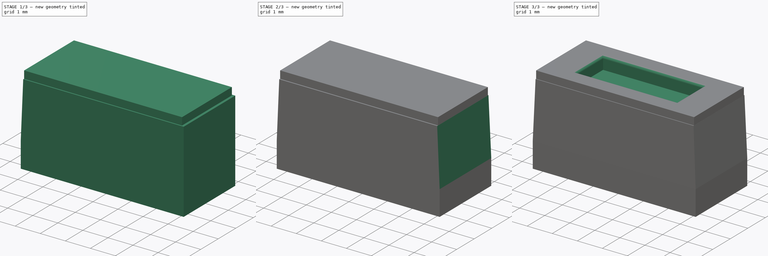
[diagram: build sequence overview — one tinted view per stage of 3, left to right]
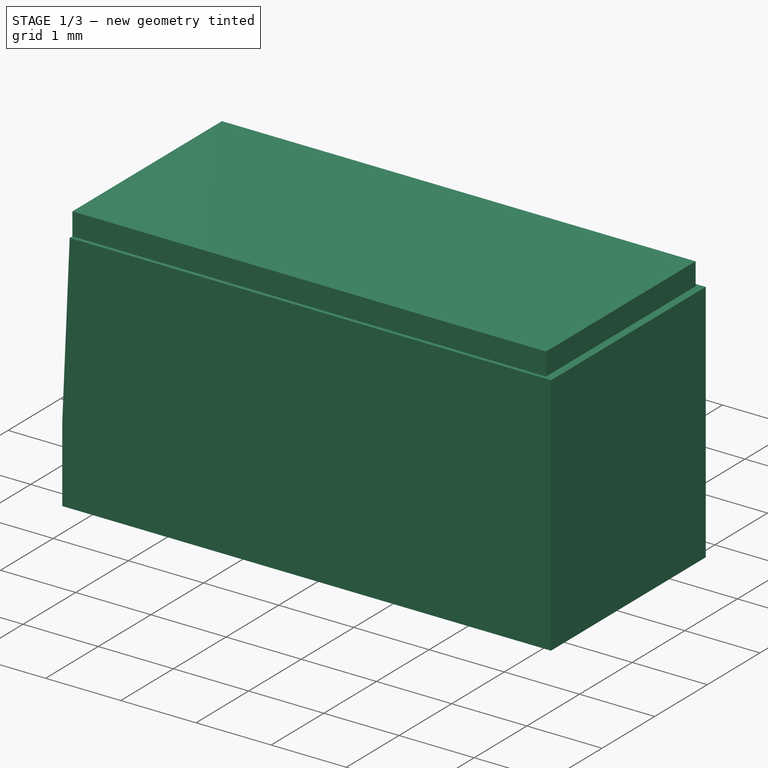
[diagram: stage 1 of 3 — iso view after this stage's code; geometry added in this stage tinted green]
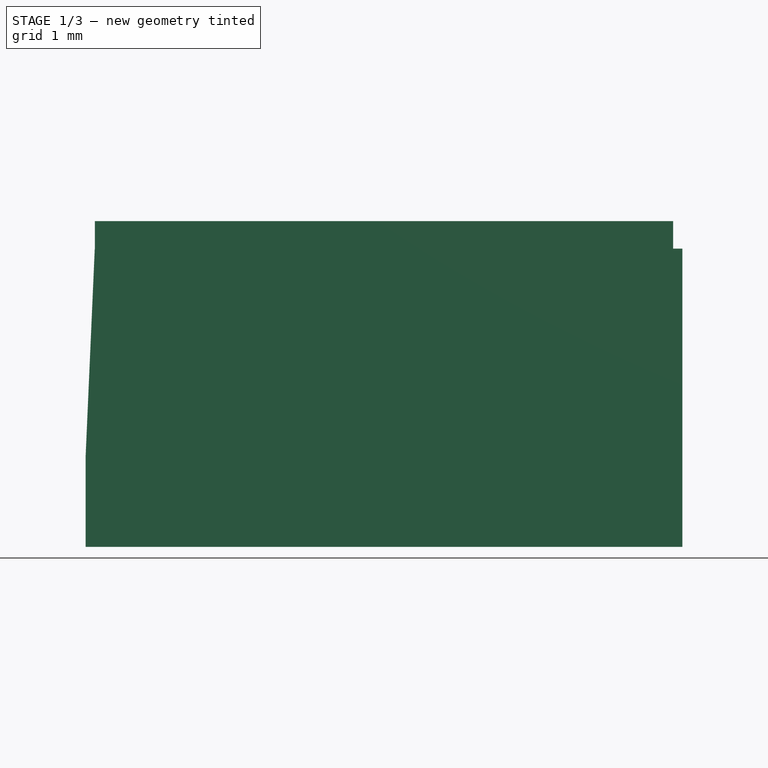
[diagram: stage 1 of 3 — front view after this stage's code; geometry added in this stage tinted green]
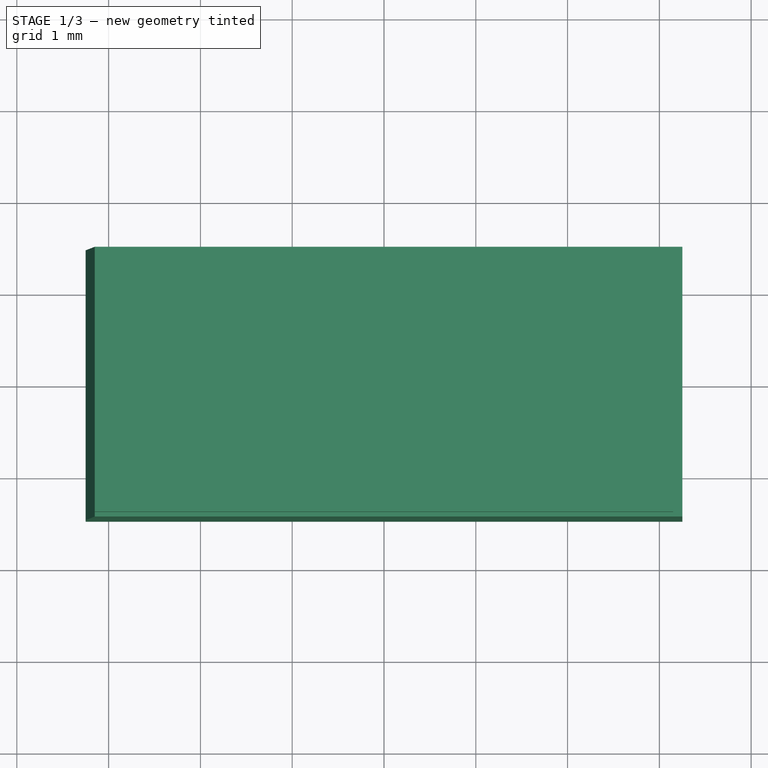
[diagram: stage 1 of 3 — top view after this stage's code; geometry added in this stage tinted green]
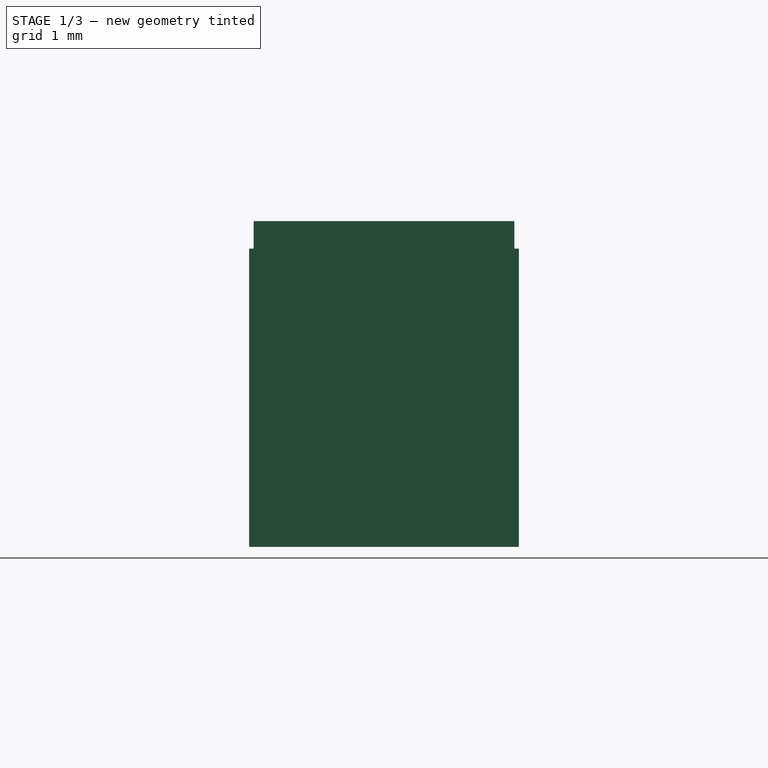
[diagram: stage 1 of 3 — right view after this stage's code; geometry added in this stage tinted green]
FCSTD DOCUMENT  (FreeCAD 0.19R24276 (Git))
Label: DIP_0x01_SMD_C54948
License: All rights reserved
LicenseURL: http://en.wikipedia.org/wiki/All_rights_reserved
objects: Sketcher::SketchObject×4, PartDesign::Chamfer×4, PartDesign::Pocket×2, PartDesign::Body×2, PartDesign::Pad×1, PartDesign::Fillet×1, App::Part×1
note: 22 computed .brp shape members not serialized (recipe doc carries the construction recipe); baked Part::Feature solids carry a one-line shape summary decoded from their .brp

FEATURE [Sketcher::SketchObject] Sketch
  FullyConstrained = true
  MapMode = 5
  Support = -> [XY_Plane001]
  sketch-geometry (4):
    g0: LineSegment StartX=-3.25 StartY=-1.47 StartZ=0 EndX=3.25 EndY=-1.47 EndZ=0
    g1: LineSegment StartX=3.25 StartY=-1.47 StartZ=0 EndX=3.25 EndY=1.47 EndZ=0
    g2: LineSegment StartX=3.25 StartY=1.47 StartZ=0 EndX=-3.25 EndY=1.47 EndZ=0
    g3: LineSegment StartX=-3.25 StartY=1.47 StartZ=0 EndX=-3.25 EndY=-1.47 EndZ=0
  constraints (11):
    c: Coincident(g0,g1)
    c: Coincident(g1,g2)
    c: Coincident(g2,g3)
    c: Coincident(g3,g0)
    c: Horizontal(g0)
    c: Horizontal(g2)
    c: Vertical(g1)
    c: Vertical(g3)
    c: Symmetric(g0,g1,g-1)
    c: DistanceY(g1,g1) = 2.94
    c: DistanceX(g2,g2) = 6.5
FEATURE [PartDesign::Pad] Pad
  Direction = (1,1,1)
  Length = 3.55
  Length2 = 100
  Profile = -> Sketch
  Type = 0
FEATURE [Sketcher::SketchObject] Sketch001
  ExternalGeometry = -> [Pad]
  FullyConstrained = false
  MapMode = 5
  Placement = pos=(0,0,3.55) rot=(0,0,1;0rad)
  Support = -> [Pad]
  sketch-geometry (8):
    g0: LineSegment StartX=-3.25 StartY=-1.47 StartZ=0 EndX=3.25 EndY=-1.47 EndZ=0
    g1: LineSegment StartX=3.25 StartY=-1.47 StartZ=0 EndX=3.25 EndY=1.47 EndZ=0
    g2: LineSegment StartX=3.25 StartY=1.47 StartZ=0 EndX=-3.25 EndY=1.47 EndZ=0
    g3: LineSegment StartX=-3.25 StartY=1.47 StartZ=0 EndX=-3.25 EndY=-1.47 EndZ=0
    g4: LineSegment StartX=-3.15 StartY=-1.42 StartZ=0 EndX=3.15 EndY=-1.42 EndZ=0
    g5: LineSegment StartX=3.15 StartY=-1.42 StartZ=0 EndX=3.15 EndY=1.42 EndZ=0
    g6: LineSegment StartX=3.15 StartY=1.42 StartZ=0 EndX=-3.15 EndY=1.42 EndZ=0
    g7: LineSegment StartX=-3.15 StartY=1.42 StartZ=0 EndX=-3.15 EndY=-1.42 EndZ=0
  constraints (19):
    c: Coincident(g0,g1)
    c: Coincident(g1,g2)
    c: Coincident(g2,g3)
    c: Coincident(g3,g0)
    c: Horizontal(g0)
    c: Horizontal(g2)
    c: Vertical(g1)
    c: Vertical(g3)
    c: Coincident(g4,g5)
    c: Coincident(g5,g6)
    c: Coincident(g6,g7)
    c: Coincident(g7,g4)
    c: Horizontal(g4)
    c: Horizontal(g6)
    c: Vertical(g5)
    c: Vertical(g7)
    c: Symmetric(g5,g4,g-1)
    c: DistanceX(g6,g6) = 6.3
    c: DistanceY(g5,g5) = 2.84
FEATURE [PartDesign::Pocket] Pocket
  BaseFeature = -> Pad
  Length = 0.3
  Length2 = 100
  Profile = -> Sketch001
  Type = 0
FEATURE [PartDesign::Chamfer] Chamfer
  Angle = 45
  Base = -> Pocket [Edge11]
  BaseFeature = -> Pocket
  ChamferType = 1
  FlipDirection = false
  Size = 0.099
  Size2 = 2.25
  SupportTransform = false
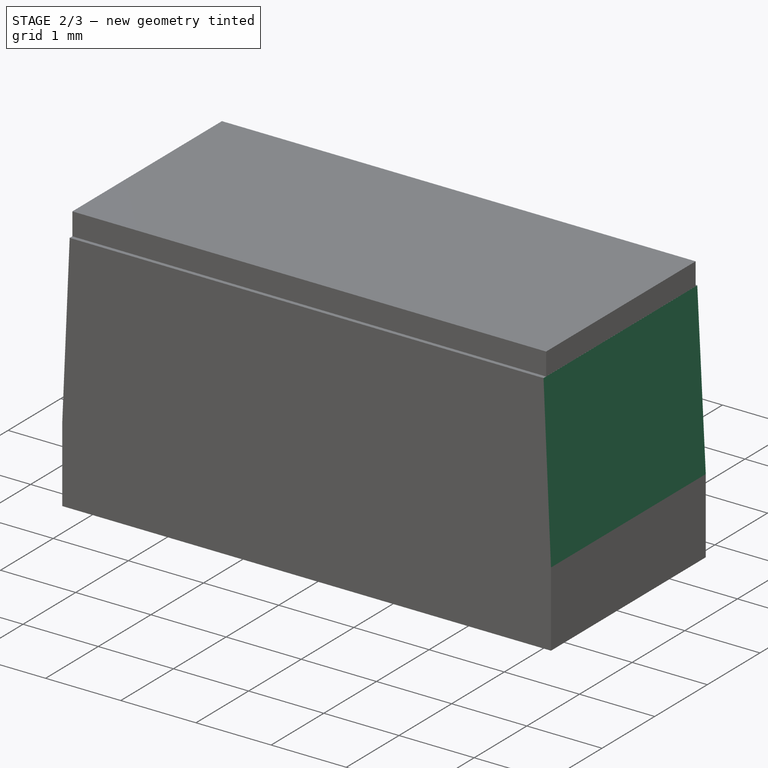
[diagram: stage 2 of 3 — iso view after this stage's code; geometry added in this stage tinted green]
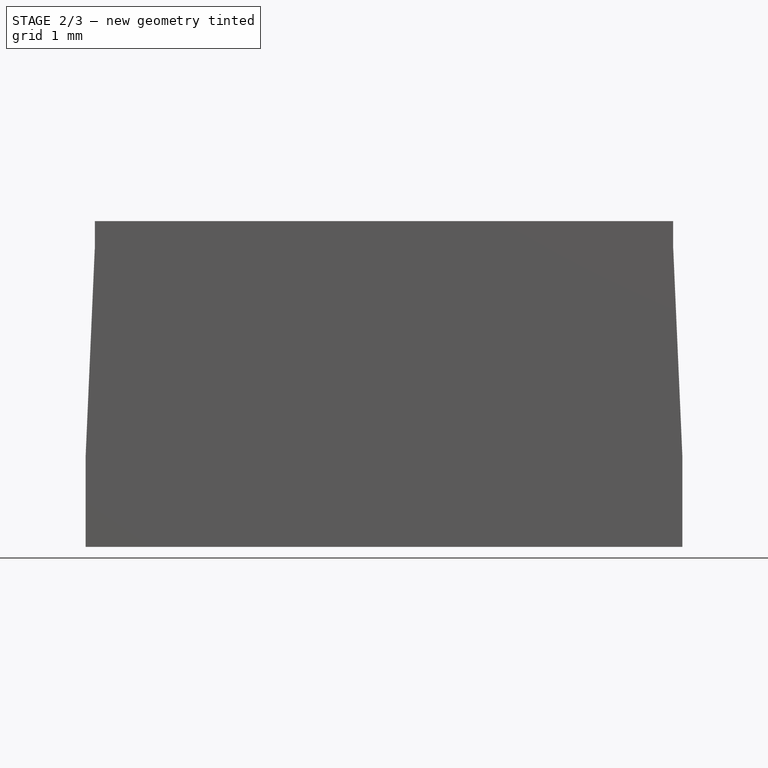
[diagram: stage 2 of 3 — front view after this stage's code; geometry added in this stage tinted green]
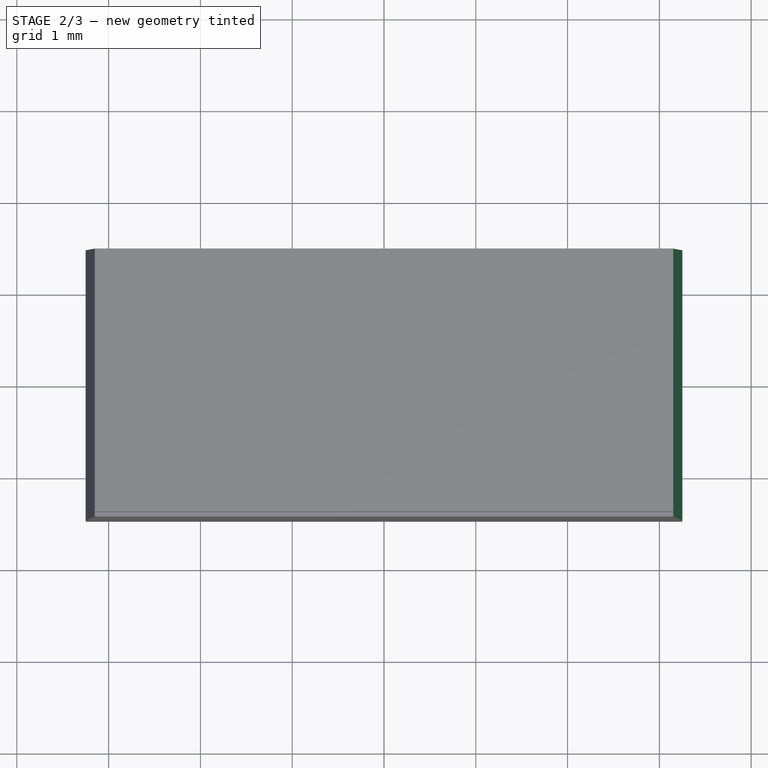
[diagram: stage 2 of 3 — top view after this stage's code; geometry added in this stage tinted green]
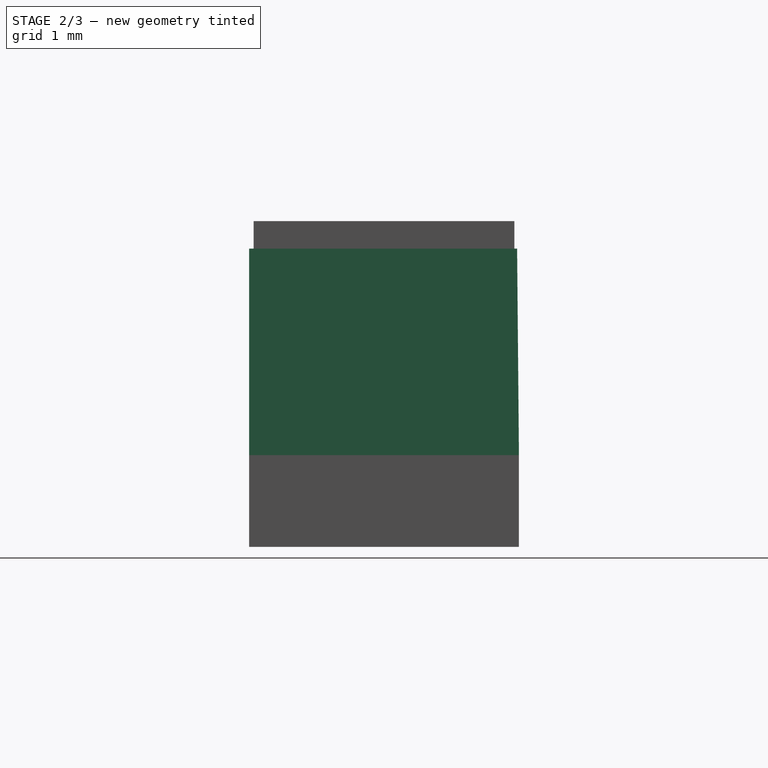
[diagram: stage 2 of 3 — right view after this stage's code; geometry added in this stage tinted green]
FEATURE [PartDesign::Chamfer] Chamfer001
  Angle = 45
  Base = -> Chamfer [Edge7]
  BaseFeature = -> Chamfer
  ChamferType = 1
  FlipDirection = false
  Size = 0.099
  Size2 = 2.25
  SupportTransform = false
FEATURE [PartDesign::Chamfer] Chamfer002
  Angle = 45
  Base = -> Chamfer001 [Edge9]
  BaseFeature = -> Chamfer001
  ChamferType = 1
  FlipDirection = false
  Size = 0.02
  Size2 = 2.25
  SupportTransform = false
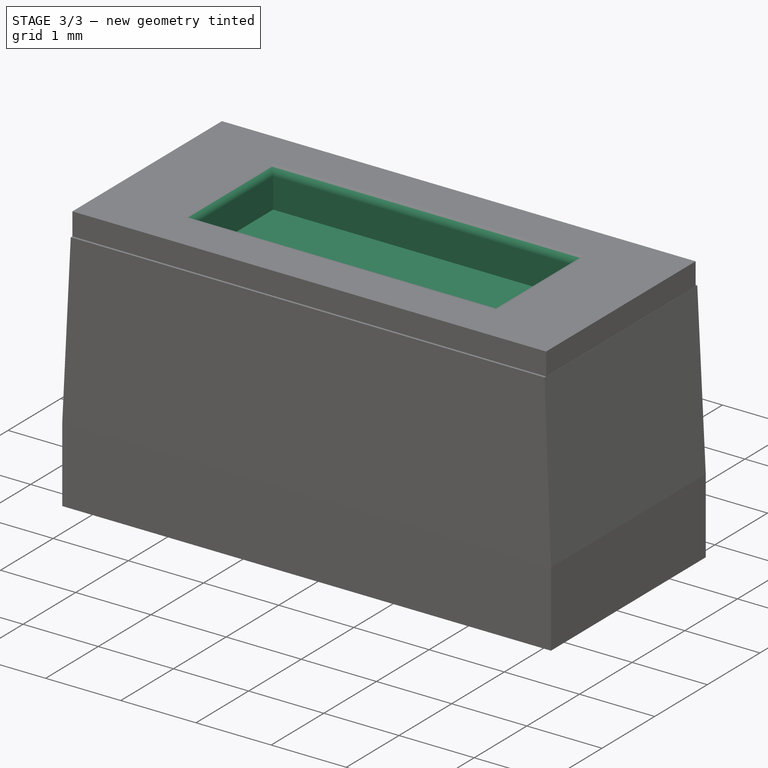
[diagram: stage 3 of 3 — iso view after this stage's code; geometry added in this stage tinted green]
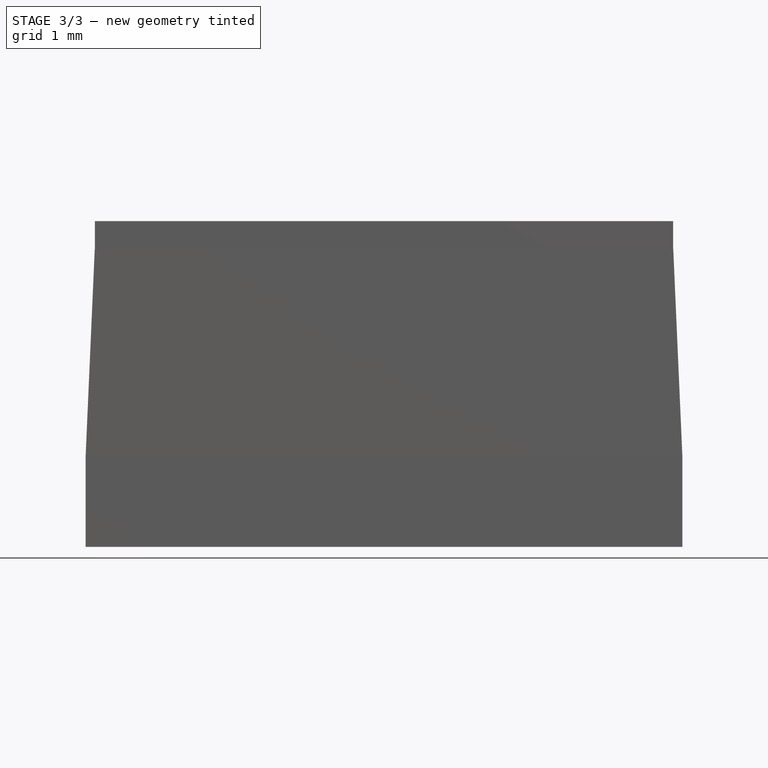
[diagram: stage 3 of 3 — front view after this stage's code; geometry added in this stage tinted green]
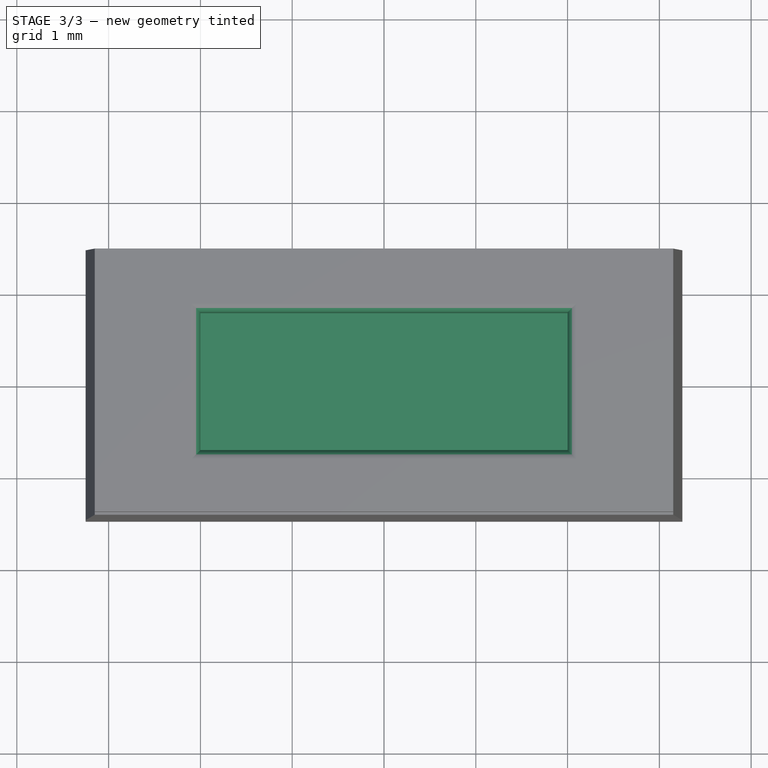
[diagram: stage 3 of 3 — top view after this stage's code; geometry added in this stage tinted green]
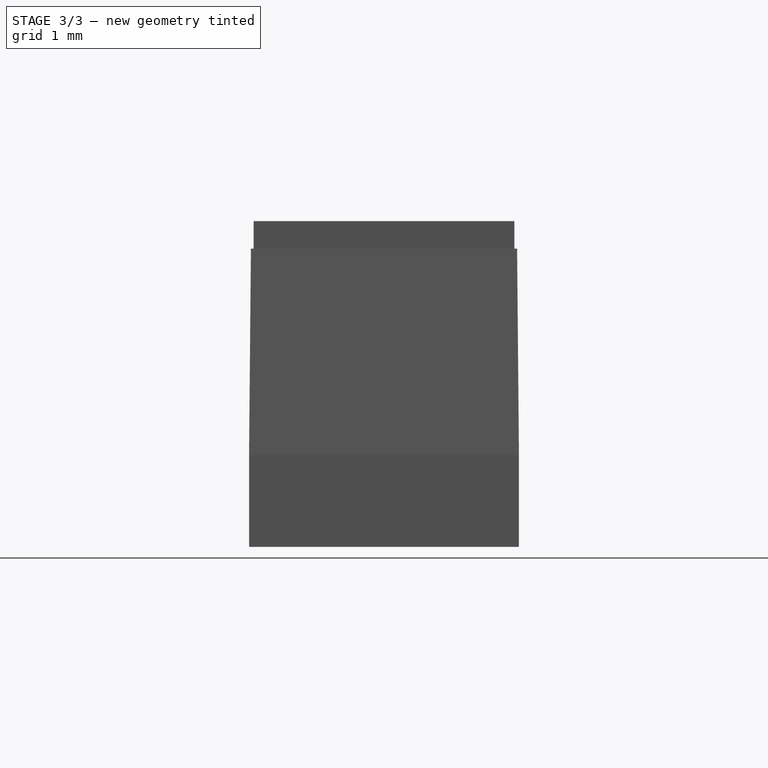
[diagram: stage 3 of 3 — right view after this stage's code; geometry added in this stage tinted green]
FEATURE [PartDesign::Chamfer] Chamfer003
  Angle = 45
  Base = -> Chamfer002 [Edge3]
  BaseFeature = -> Chamfer002
  ChamferType = 1
  FlipDirection = false
  Size = 0.02
  Size2 = 2.25
  SupportTransform = false
FEATURE [Sketcher::SketchObject] Sketch002
  FullyConstrained = true
  MapMode = 5
  Placement = pos=(0,0,3.55) rot=(0,0,1;0rad)
  Support = -> [Chamfer003]
  sketch-geometry (4):
    g0: LineSegment StartX=-2 StartY=-0.75 StartZ=0 EndX=2 EndY=-0.75 EndZ=0
    g1: LineSegment StartX=2 StartY=-0.75 StartZ=0 EndX=2 EndY=0.75 EndZ=0
    g2: LineSegment StartX=2 StartY=0.75 StartZ=0 EndX=-2 EndY=0.75 EndZ=0
    g3: LineSegment StartX=-2 StartY=0.75 StartZ=0 EndX=-2 EndY=-0.75 EndZ=0
  constraints (11):
    c: Coincident(g0,g1)
    c: Coincident(g1,g2)
    c: Coincident(g2,g3)
    c: Coincident(g3,g0)
    c: Horizontal(g0)
    c: Horizontal(g2)
    c: Vertical(g1)
    c: Vertical(g3)
    c: Symmetric(g1,g0,g-1)
    c: DistanceY(g1,g1) = 1.5
    c: DistanceX(g2,g2) = 4
FEATURE [PartDesign::Pocket] Pocket001
  BaseFeature = -> Chamfer003
  Length = 0.5
  Length2 = 100
  Profile = -> Sketch002
  Type = 0
FEATURE [PartDesign::Fillet] Fillet
  Base = -> Pocket001 [Edge34,Edge33,Edge35,Edge36]
  BaseFeature = -> Pocket001
  Radius = 0.1
  SupportTransform = false
FEATURE [PartDesign::Body] Body  label="SwitchBody"
  Group = -> [Sketch,Pad,Sketch001,Pocket,Chamfer,Chamfer001,Chamfer002,Chamfer003,Sketch002,Pocket001,Fillet]
  Origin = -> Origin001
  Placement = pos=(0,0,0.4) rot=(0,0,1;0rad)
  Tip = -> Fillet
FEATURE [Sketcher::SketchObject] Sketch003
  FullyConstrained = false
  MapMode = 5
  Placement = pos=(0,0,0) rot=(1,0,0;1.5708rad)
  Support = -> [XZ_Plane002]
  sketch-geometry (10):
    g0: LineSegment StartX=-4.9 StartY=0 StartZ=0 EndX=4.9 EndY=0 EndZ=0
    g1: LineSegment StartX=-4.1 StartY=0 StartZ=0 EndX=-4.1 EndY=1.8 EndZ=0
    g2: LineSegment StartX=4.1 StartY=0 StartZ=0 EndX=4.1 EndY=1.8 EndZ=0
    g3: LineSegment StartX=-4.1 StartY=1.55 StartZ=0 EndX=4.1 EndY=1.55 EndZ=0
    g4: LineSegment StartX=-4.9 StartY=0 StartZ=0 EndX=4.796 EndY=0 EndZ=0
    g5: LineSegment StartX=-4.9 StartY=0 StartZ=0 EndX=-4.9 EndY=0.25 EndZ=0
    g6: LineSegment StartX=4.9 StartY=0 StartZ=0 EndX=4.9 EndY=0.25 EndZ=0
    g7: LineSegment StartX=-4.9 StartY=0.25 StartZ=0 EndX=4.9 EndY=0.25 EndZ=0
    g8: LineSegment StartX=4.1 StartY=1.8 StartZ=0 EndX=4.35 EndY=0.25 EndZ=0
    g9: LineSegment StartX=-4 StartY=2 StartZ=0 EndX=-4.44821 EndY=0.249888 EndZ=0
  constraints (28):
    c: Symmetric(g0,g0,g-1)
    c: DistanceX(g0,g0) = 9.8
    c: Vertical(g1)
    c: Vertical(g2)
    c: DistanceX(g0,g1) = 0.8
    c: DistanceX(g2,g0) = 0.8
    c: Horizontal(g0)
    c: PointOnObject(g1,g0)
    c: PointOnObject(g2,g0)
    c: DistanceY(g1,g1) = 1.8
    c: Equal(g2,g1)
    c: PointOnObject(g3,g1)
    c: PointOnObject(g3,g2)
    c: Horizontal(g3)
    c: DistanceY(g3,g1) = 0.25
    c: Horizontal(g4)
    c: Coincident(g4,g0)
    c: Vertical(g5)
    c: DistanceY(g5,g5) = 0.25
    c: Coincident(g5,g0)
    c: DistanceY(g6,g6) = 0.25
    c: Vertical(g6)
    c: Coincident(g6,g0)
    c: Coincident(g7,g6)
    c: Coincident(g7,g5)
    c: PointOnObject(g8,g7)
    c: Coincident(g8,g2)
    c: DistanceX(g2,g8) = 0.25
FEATURE [PartDesign::Body] Body001  label="Legs"
  Group = -> [Sketch003]
  Origin = -> Origin002
FEATURE [App::Part] Part
  Group = -> [Body001,Body]
  Origin = -> Origin
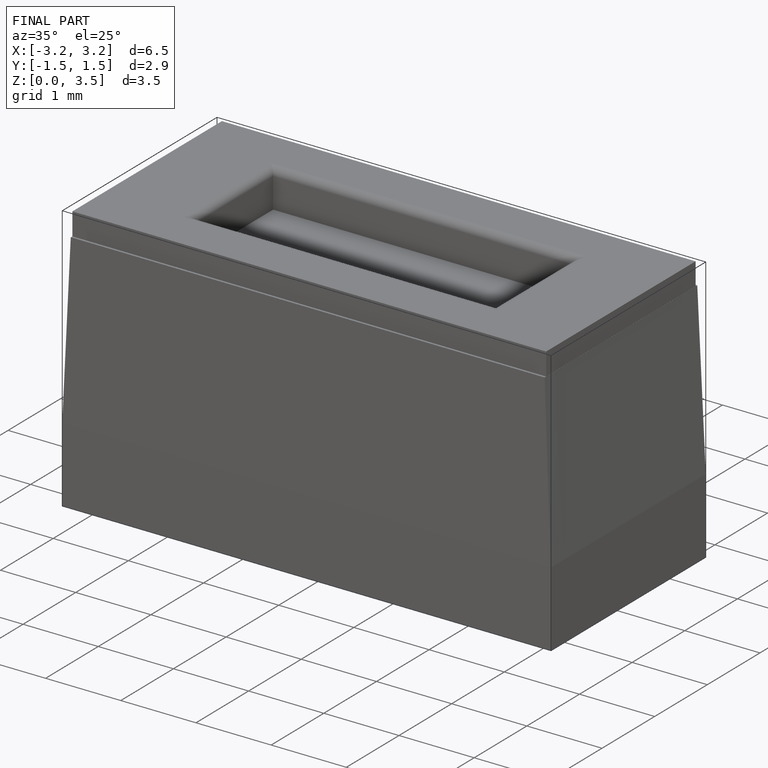
[diagram: finished part — iso view with bounding-box wireframe]
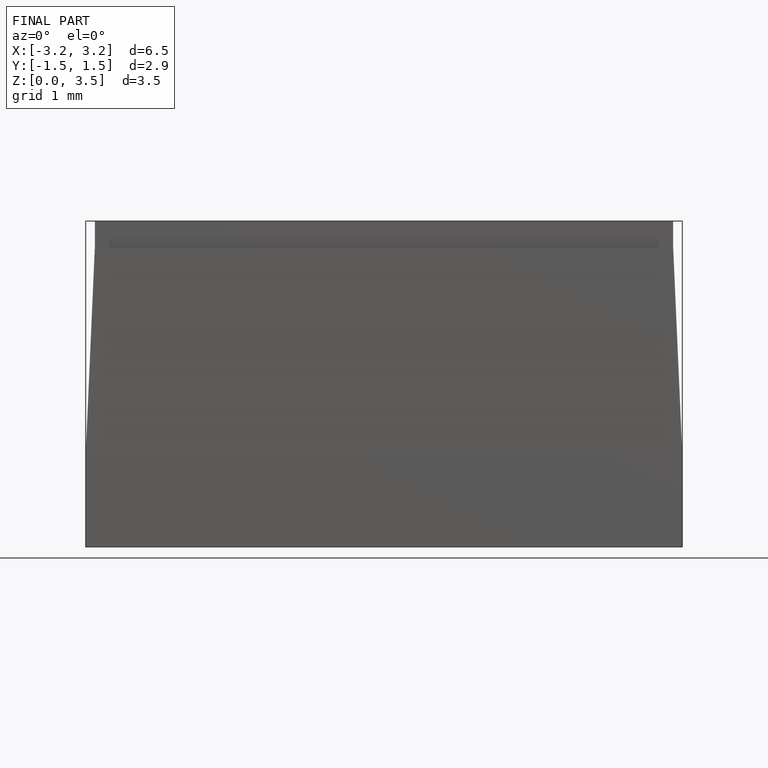
[diagram: finished part — front view with bounding-box wireframe]
